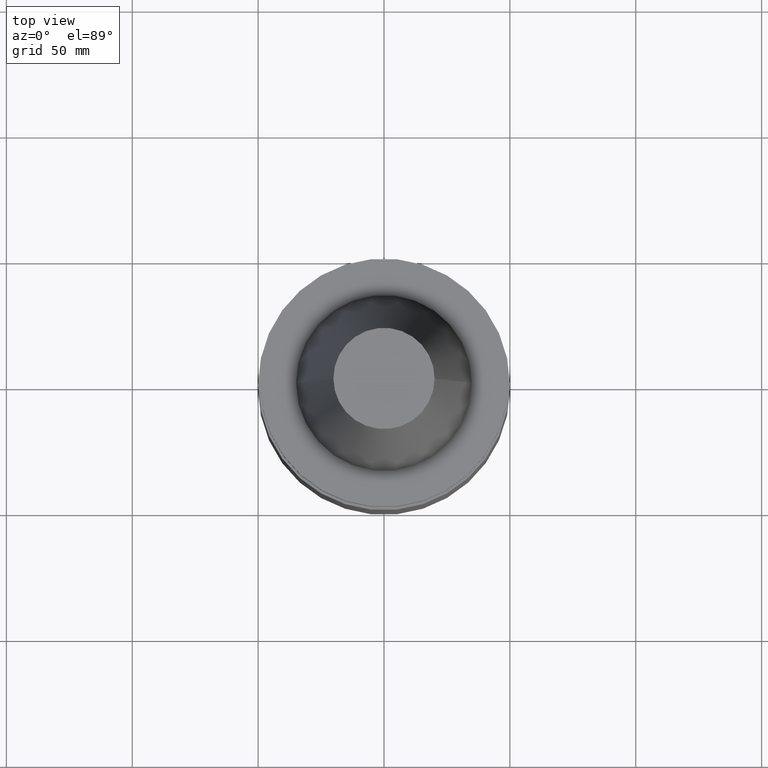
[diagram: clean part render]
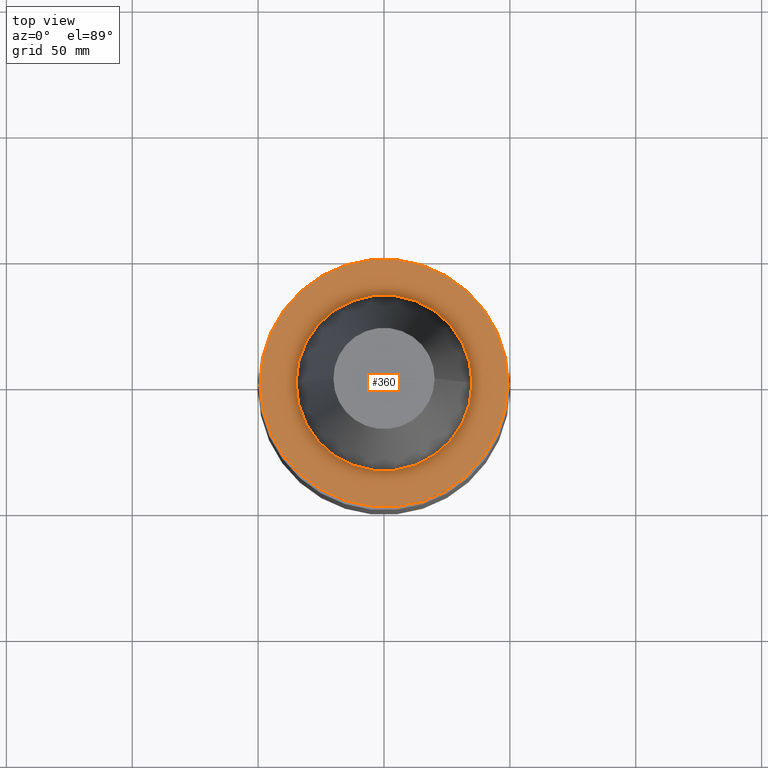
[diagram: same view with one face highlighted and labeled with its STEP entity id]
A machine part, top view. The second image highlights one B-rep face of the part: STEP entity #360.
In plain terms, the highlighted planar face has unit normal (0, 0, -1).
Its self-contained STEP definition (entity closure, byte-faithful):
#21 = CIRCLE ( 'NONE', #547, 34.92499999999999005 ) ;
#31 = VERTEX_POINT ( 'NONE', #128 ) ;
#39 = ORIENTED_EDGE ( 'NONE', *, *, #73, .T. ) ;
#60 = CARTESIAN_POINT ( 'NONE',  ( -34.92499999999999005, 4.277078946022130098E-15, -1.499999999999987566 ) ) ;
#73 = EDGE_CURVE ( 'NONE', #674, #31, #623, .T. ) ;
#94 = VERTEX_POINT ( 'NONE', #60 ) ;
#98 = EDGE_CURVE ( 'NONE', #757, #94, #21, .T. ) ;
#112 = CARTESIAN_POINT ( 'NONE',  ( 34.92499999999999005, 0.000000000000000000, -1.499999999999987566 ) ) ;
#118 = DIRECTION ( 'NONE',  ( -0.000000000000000000, -0.000000000000000000, 1.000000000000000000 ) ) ;
#128 = CARTESIAN_POINT ( 'NONE',  ( -49.21499999999999631, 6.027099222003697826E-15, -1.499999999999987566 ) ) ;
#140 = ORIENTED_EDGE ( 'NONE', *, *, #98, .F. ) ;
#151 = AXIS2_PLACEMENT_3D ( 'NONE', #815, #421, #356 ) ;
#174 = DIRECTION ( 'NONE',  ( 1.000000000000000000, 0.000000000000000000, 0.000000000000000000 ) ) ;
#270 = AXIS2_PLACEMENT_3D ( 'NONE', #651, #568, #653 ) ;
#309 = PLANE ( 'NONE',  #270 ) ;
#346 = AXIS2_PLACEMENT_3D ( 'NONE', #698, #118, #652 ) ;
#348 = DIRECTION ( 'NONE',  ( -0.000000000000000000, -0.000000000000000000, 1.000000000000000000 ) ) ;
#354 = EDGE_LOOP ( 'NONE', ( #140, #422 ) ) ;
#356 = DIRECTION ( 'NONE',  ( 1.000000000000000000, 0.000000000000000000, 0.000000000000000000 ) ) ;
#360 = ADVANCED_FACE ( 'NONE', ( #771, #640 ), #309, .F. ) ;
#421 = DIRECTION ( 'NONE',  ( -0.000000000000000000, -0.000000000000000000, 1.000000000000000000 ) ) ;
#422 = ORIENTED_EDGE ( 'NONE', *, *, #697, .F. ) ;
#439 = CIRCLE ( 'NONE', #151, 49.21499999999999631 ) ;
#461 = ORIENTED_EDGE ( 'NONE', *, *, #636, .T. ) ;
#478 = CARTESIAN_POINT ( 'NONE',  ( 0.000000000000000000, 0.000000000000000000, -1.499999999999987566 ) ) ;
#479 = AXIS2_PLACEMENT_3D ( 'NONE', #478, #348, #604 ) ;
#493 = CARTESIAN_POINT ( 'NONE',  ( 0.000000000000000000, 0.000000000000000000, -1.499999999999987566 ) ) ;
#547 = AXIS2_PLACEMENT_3D ( 'NONE', #493, #555, #174 ) ;
#555 = DIRECTION ( 'NONE',  ( -0.000000000000000000, -0.000000000000000000, 1.000000000000000000 ) ) ;
#568 = DIRECTION ( 'NONE',  ( 0.000000000000000000, 0.000000000000000000, -1.000000000000000000 ) ) ;
#604 = DIRECTION ( 'NONE',  ( 1.000000000000000000, 0.000000000000000000, 0.000000000000000000 ) ) ;
#623 = CIRCLE ( 'NONE', #346, 49.21499999999999631 ) ;
#636 = EDGE_CURVE ( 'NONE', #31, #674, #439, .T. ) ;
#640 = FACE_OUTER_BOUND ( 'NONE', #687, .T. ) ;
#651 = CARTESIAN_POINT ( 'NONE',  ( 0.000000000000000000, 49.21499999999999631, -1.499999999999992895 ) ) ;
#652 = DIRECTION ( 'NONE',  ( 1.000000000000000000, 0.000000000000000000, 0.000000000000000000 ) ) ;
#653 = DIRECTION ( 'NONE',  ( -1.000000000000000000, 0.000000000000000000, -0.000000000000000000 ) ) ;
#670 = CIRCLE ( 'NONE', #479, 34.92499999999999005 ) ;
#674 = VERTEX_POINT ( 'NONE', #691 ) ;
#687 = EDGE_LOOP ( 'NONE', ( #39, #461 ) ) ;
#691 = CARTESIAN_POINT ( 'NONE',  ( 49.21499999999999631, 0.000000000000000000, -1.499999999999987566 ) ) ;
#697 = EDGE_CURVE ( 'NONE', #94, #757, #670, .T. ) ;
#698 = CARTESIAN_POINT ( 'NONE',  ( 0.000000000000000000, 0.000000000000000000, -1.499999999999987566 ) ) ;
#757 = VERTEX_POINT ( 'NONE', #112 ) ;
#771 = FACE_BOUND ( 'NONE', #354, .T. ) ;
#815 = CARTESIAN_POINT ( 'NONE',  ( 0.000000000000000000, 0.000000000000000000, -1.499999999999987566 ) ) ;